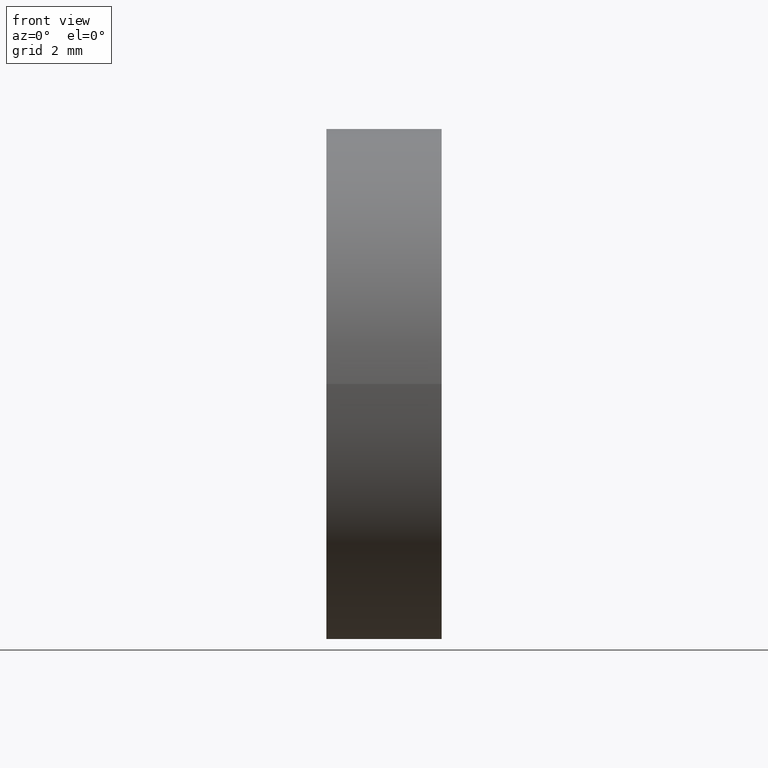
[diagram: clean part render]
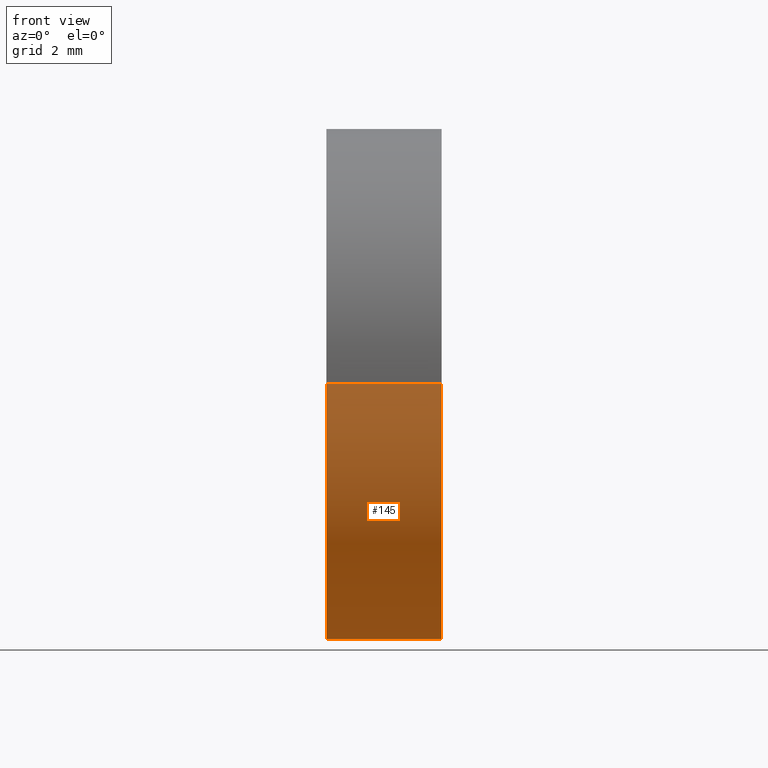
[diagram: same view with one face highlighted and labeled with its STEP entity id]
A machine part, front view. The second image highlights one B-rep face of the part: STEP entity #145.
In plain terms, the highlighted cylindrical surface (partial cylindrical patch) has radius 8 mm, axis along (-1, 0, -0).
Its self-contained STEP definition (entity closure, byte-faithful):
#5 = CYLINDRICAL_SURFACE ( 'NONE', #82, 8.000000000000000000 ) ;
#13 = CARTESIAN_POINT ( 'NONE',  ( 44.85442262622448300, 34.06225218280608400, 9.797174393178827600E-016 ) ) ;
#18 = AXIS2_PLACEMENT_3D ( 'NONE', #106, #37, #122 ) ;
#24 = VERTEX_POINT ( 'NONE', #94 ) ;
#25 = DIRECTION ( 'NONE',  ( 0.0000000000000000000, -1.000000000000000000, 0.0000000000000000000 ) ) ;
#27 = FACE_OUTER_BOUND ( 'NONE', #61, .T. ) ;
#30 = EDGE_CURVE ( 'NONE', #78, #125, #141, .T. ) ;
#37 = DIRECTION ( 'NONE',  ( -1.000000000000000000, 4.058245434298766700E-016, -0.0000000000000000000 ) ) ;
#40 = CARTESIAN_POINT ( 'NONE',  ( 48.45710460198292000, 34.06225218280609100, 9.797174393178819700E-016 ) ) ;
#47 = CARTESIAN_POINT ( 'NONE',  ( 43.01195023616492100, 34.06225218280608400, 9.797174393178827600E-016 ) ) ;
#50 = ORIENTED_EDGE ( 'NONE', *, *, #30, .F. ) ;
#59 = DIRECTION ( 'NONE',  ( -1.000000000000000000, 4.058245434298766700E-016, -0.0000000000000000000 ) ) ;
#61 = EDGE_LOOP ( 'NONE', ( #110, #119, #103, #50 ) ) ;
#62 = AXIS2_PLACEMENT_3D ( 'NONE', #69, #67, #25 ) ;
#63 = LINE ( 'NONE', #98, #120 ) ;
#67 = DIRECTION ( 'NONE',  ( -1.000000000000000000, 4.058245434298766700E-016, -0.0000000000000000000 ) ) ;
#69 = CARTESIAN_POINT ( 'NONE',  ( 48.45710460198292000, 26.06225218280608000, 0.0000000000000000000 ) ) ;
#78 = VERTEX_POINT ( 'NONE', #13 ) ;
#82 = AXIS2_PLACEMENT_3D ( 'NONE', #101, #130, #111 ) ;
#89 = DIRECTION ( 'NONE',  ( -1.000000000000000000, 4.058245434298766700E-016, -0.0000000000000000000 ) ) ;
#90 = EDGE_CURVE ( 'NONE', #91, #78, #113, .T. ) ;
#91 = VERTEX_POINT ( 'NONE', #40 ) ;
#94 = CARTESIAN_POINT ( 'NONE',  ( 48.45710460198292000, 18.06225218280608400, 0.0000000000000000000 ) ) ;
#95 = VECTOR ( 'NONE', #59, 1000.000000000000000 ) ;
#98 = CARTESIAN_POINT ( 'NONE',  ( 43.01195023616492100, 18.06225218280608400, 0.0000000000000000000 ) ) ;
#101 = CARTESIAN_POINT ( 'NONE',  ( 43.01195023616492100, 26.06225218280608400, 0.0000000000000000000 ) ) ;
#103 = ORIENTED_EDGE ( 'NONE', *, *, #128, .T. ) ;
#106 = CARTESIAN_POINT ( 'NONE',  ( 44.85442262622448300, 26.06225218280608400, 0.0000000000000000000 ) ) ;
#110 = ORIENTED_EDGE ( 'NONE', *, *, #90, .F. ) ;
#111 = DIRECTION ( 'NONE',  ( 0.0000000000000000000, -1.000000000000000000, 0.0000000000000000000 ) ) ;
#113 = LINE ( 'NONE', #47, #95 ) ;
#119 = ORIENTED_EDGE ( 'NONE', *, *, #157, .T. ) ;
#120 = VECTOR ( 'NONE', #89, 1000.000000000000000 ) ;
#122 = DIRECTION ( 'NONE',  ( 0.0000000000000000000, -1.000000000000000000, 0.0000000000000000000 ) ) ;
#125 = VERTEX_POINT ( 'NONE', #161 ) ;
#128 = EDGE_CURVE ( 'NONE', #24, #125, #63, .T. ) ;
#130 = DIRECTION ( 'NONE',  ( -1.000000000000000000, 4.058245434298766700E-016, -0.0000000000000000000 ) ) ;
#131 = CIRCLE ( 'NONE', #62, 8.000000000000003600 ) ;
#141 = CIRCLE ( 'NONE', #18, 8.000000000000000000 ) ;
#145 = ADVANCED_FACE ( 'NONE', ( #27 ), #5, .T. ) ;
#157 = EDGE_CURVE ( 'NONE', #91, #24, #131, .T. ) ;
#161 = CARTESIAN_POINT ( 'NONE',  ( 44.85442262622448300, 18.06225218280608400, 0.0000000000000000000 ) ) ;